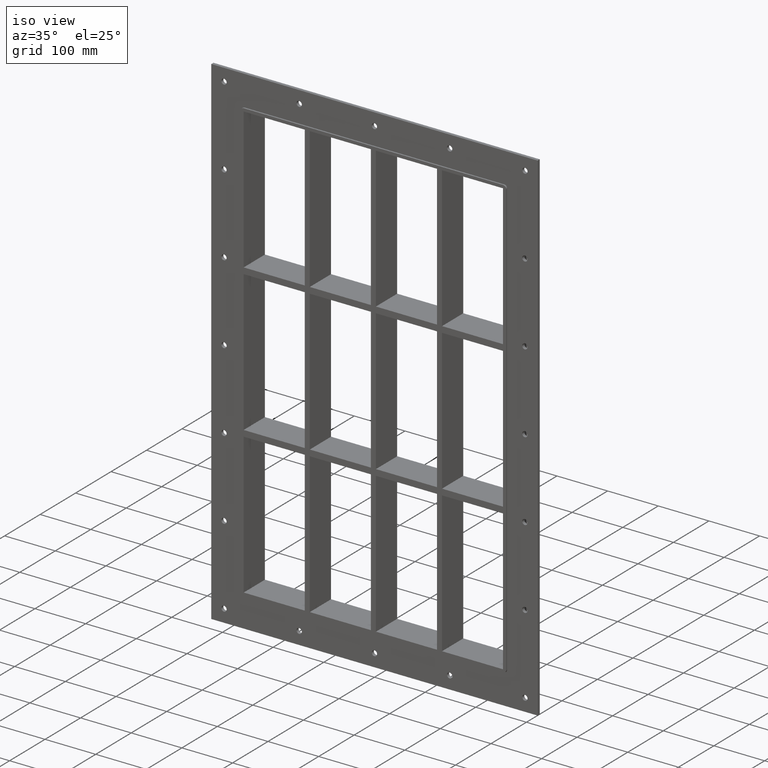
[diagram: clean part render]
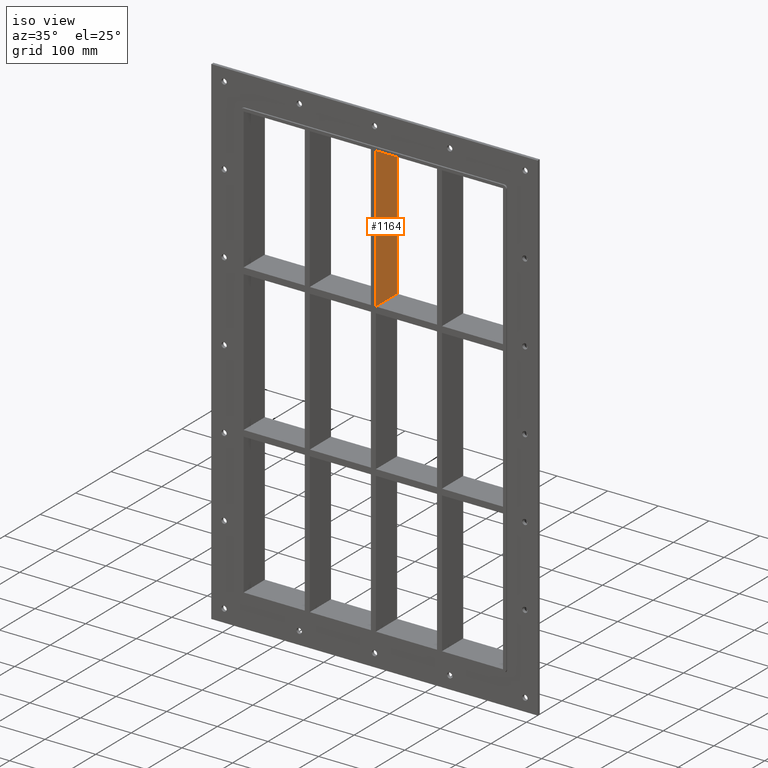
[diagram: same view with one face highlighted and labeled with its STEP entity id]
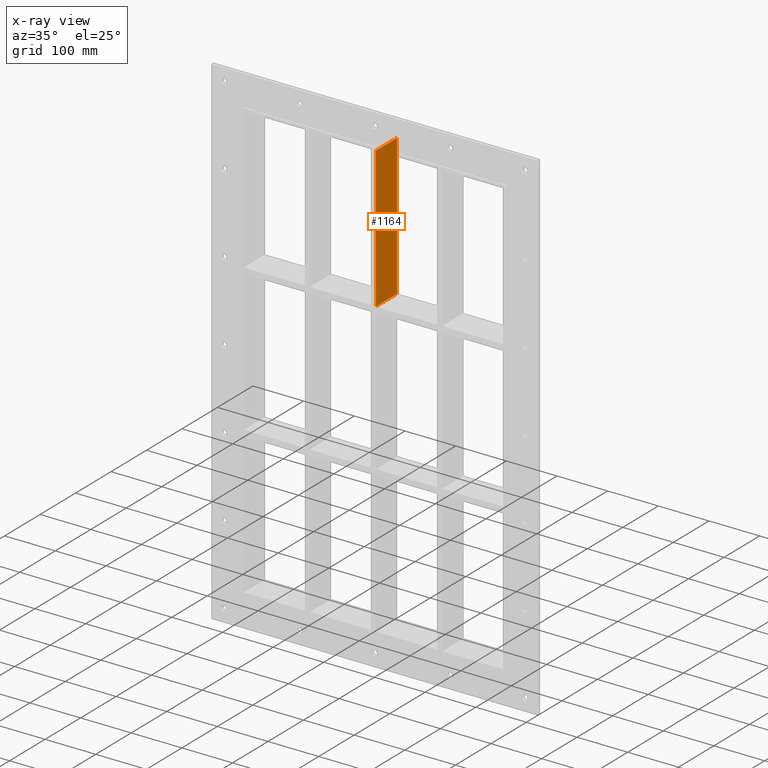
[diagram: x-ray of the same camera — body ghosted, the highlighted face saturated]
A machine part, iso view. The second image highlights one B-rep face of the part: STEP entity #1164.
The next image is the same camera in x-ray: the body ghosted, the highlighted face saturated — about 0% of this face is hidden behind the body in this view.
In plain terms, the highlighted planar face has unit normal (1, 0, 0).
Its self-contained STEP definition (entity closure, byte-faithful):
#923=CARTESIAN_POINT('',(5.000000000007283,57.0,151.00000000000009));
#924=VERTEX_POINT('',#923);
#931=CARTESIAN_POINT('',(5.000000000007283,-3.0,151.00000000000009));
#932=VERTEX_POINT('',#931);
#933=CARTESIAN_POINT('',(5.000000000007283,-3.0,151.00000000000009));
#934=DIRECTION('',(0.0,1.0,0.0));
#935=VECTOR('',#934,60.0);
#936=LINE('',#933,#935);
#937=EDGE_CURVE('',#932,#924,#936,.T.);
#1134=CARTESIAN_POINT('',(5.000000000007283,-3.0,429.00000000000006));
#1135=DIRECTION('',(1.0,0.0,0.0));
#1136=DIRECTION('',(0.0,0.0,-1.0));
#1137=AXIS2_PLACEMENT_3D('',#1134,#1135,#1136);
#1138=PLANE('',#1137);
#1139=ORIENTED_EDGE('',*,*,#937,.T.);
#1140=CARTESIAN_POINT('',(5.000000000007283,57.0,429.00000000000006));
#1141=VERTEX_POINT('',#1140);
#1142=CARTESIAN_POINT('',(5.000000000007283,57.0,429.00000000000006));
#1143=DIRECTION('',(0.0,0.0,-1.0));
#1144=VECTOR('',#1143,278.0);
#1145=LINE('',#1142,#1144);
#1146=EDGE_CURVE('',#1141,#924,#1145,.T.);
#1147=ORIENTED_EDGE('',*,*,#1146,.F.);
#1148=CARTESIAN_POINT('',(5.000000000007283,-3.0,429.00000000000006));
#1149=VERTEX_POINT('',#1148);
#1150=CARTESIAN_POINT('',(5.000000000007283,-3.0,429.00000000000006));
#1151=DIRECTION('',(0.0,1.0,0.0));
#1152=VECTOR('',#1151,60.000000000000007);
#1153=LINE('',#1150,#1152);
#1154=EDGE_CURVE('',#1149,#1141,#1153,.T.);
#1155=ORIENTED_EDGE('',*,*,#1154,.F.);
#1156=CARTESIAN_POINT('',(5.000000000007283,-3.0,429.00000000000006));
#1157=DIRECTION('',(0.0,0.0,-1.0));
#1158=VECTOR('',#1157,278.0);
#1159=LINE('',#1156,#1158);
#1160=EDGE_CURVE('',#1149,#932,#1159,.T.);
#1161=ORIENTED_EDGE('',*,*,#1160,.T.);
#1162=EDGE_LOOP('',(#1139,#1147,#1155,#1161));
#1163=FACE_OUTER_BOUND('',#1162,.T.);
#1164=ADVANCED_FACE('',(#1163),#1138,.T.);